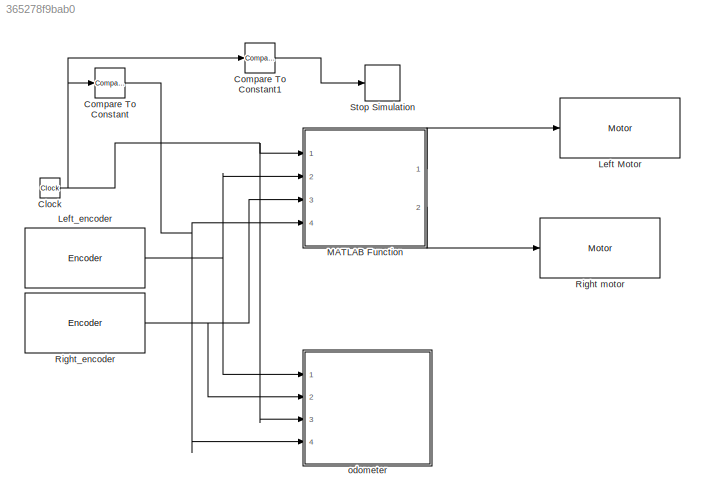
MODEL slx_365278f9bab0
KIND model
CONFIG AbsTol = auto
CONFIG EnableMultiTasking = on
CONFIG FixedStep = auto
CONFIG MaxStep = auto
CONFIG MinStep = auto
CONFIG RelTol = 1e-3
CONFIG SampleTimeConstraint = Unconstrained
CONFIG Solver = FixedStepAuto
CONFIG SolverName = FixedStepAuto
CONFIG StartTime = 0.0
CONFIG StopTime = 10.0
BLOCK [Clock] Clock
  Decimation = 1
BLOCK [Reference] Compare To Constant  REF=simulink/Logic and Bit
Operations/Compare
To Constant
  Ports = [1, 1]
  SourceBlock = simulink/Logic and Bit\nOperations/Compare\nTo Constant
  SourceType = Compare To Constant
BLOCK [Reference] Compare To Constant1  REF=simulink/Logic and Bit
Operations/Compare
To Constant
  Ports = [1, 1]
  SourceBlock = simulink/Logic and Bit\nOperations/Compare\nTo Constant
  SourceType = Compare To Constant
BLOCK [Reference] Left Motor  REF=legoev3lib/Motor
  Ports = [1]
  SourceBlock = legoev3lib/Motor
  SourceType = LEGO MINDSTORMS EV3 Motor
BLOCK [Reference] Left_encoder   REF=legoev3lib/Encoder
  Ports = [0, 1]
  SourceBlock = legoev3lib/Encoder
  SourceType = LEGO MINDSTORMS EV3 Encoder
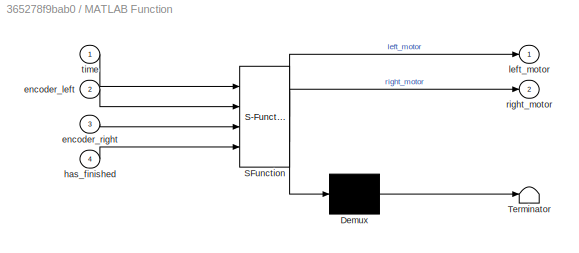
BLOCK [SubSystem] MATLAB Function
  ErrorFcn = Stateflow.Translate.translate
  PermitHierarchicalResolution = ExplicitOnly
  Ports = [4, 2]
  RequestExecContextInheritance = off
  SFBlockType = MATLAB Function
  TreatAsAtomicUnit = on
  Variant = off
BLOCK [Demux] MATLAB Function/ Demux 
  Outputs = 1
  Ports = [1, 1]
BLOCK [S-Function] MATLAB Function/ SFunction 
  EnableBusSupport = on
  FunctionName = sf_sfun
  PortCounts = [4 3]
  Ports = [4, 3]
  SFcnIsStateOwnerBlock = off
  SFunctionDeploymentMode = off
  Tag = Stateflow S-Function pr5 2
BLOCK [Terminator] MATLAB Function/ Terminator 
BLOCK [Inport] MATLAB Function/encoder_left
  IconDisplay = Port number
  Port = 2
BLOCK [Inport] MATLAB Function/encoder_right
  IconDisplay = Port number
  Port = 3
BLOCK [Inport] MATLAB Function/has_finished
  IconDisplay = Port number
  Port = 4
BLOCK [Outport] MATLAB Function/left_motor
  IconDisplay = Port number
BLOCK [Outport] MATLAB Function/right_motor
  IconDisplay = Port number
  Port = 2
BLOCK [Inport] MATLAB Function/time
  IconDisplay = Port number
BLOCK [Reference] Right motor   REF=legoev3lib/Motor
  Ports = [1]
  SourceBlock = legoev3lib/Motor
  SourceType = LEGO MINDSTORMS EV3 Motor
BLOCK [Reference] Right_encoder   REF=legoev3lib/Encoder
  Ports = [0, 1]
  SourceBlock = legoev3lib/Encoder
  SourceType = LEGO MINDSTORMS EV3 Encoder
BLOCK [Stop] Stop Simulation
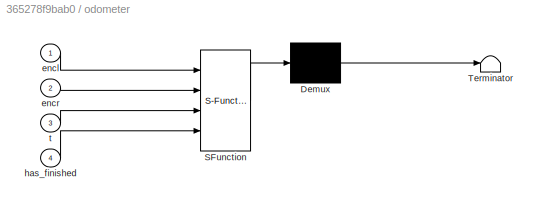
BLOCK [SubSystem] odometer
  ErrorFcn = Stateflow.Translate.translate
  PermitHierarchicalResolution = ExplicitOnly
  Ports = [4]
  RequestExecContextInheritance = off
  SFBlockType = MATLAB Function
  TreatAsAtomicUnit = on
  Variant = off
BLOCK [Demux] odometer/ Demux 
  Outputs = 1
  Ports = [1, 1]
BLOCK [S-Function] odometer/ SFunction 
  EnableBusSupport = on
  FunctionName = sf_sfun
  PortCounts = [4 1]
  Ports = [4, 1]
  SFcnIsStateOwnerBlock = off
  SFunctionDeploymentMode = off
  Tag = Stateflow S-Function pr5 1
BLOCK [Terminator] odometer/ Terminator 
BLOCK [Inport] odometer/encl
  IconDisplay = Port number
BLOCK [Inport] odometer/encr
  IconDisplay = Port number
  Port = 2
BLOCK [Inport] odometer/has_finished
  IconDisplay = Port number
  Port = 4
BLOCK [Inport] odometer/t
  IconDisplay = Port number
  Port = 3
NET Clock:1 -> Compare To Constant1:1, Compare To Constant:1, MATLAB Function:1, odometer:3
LINE Compare To Constant1:1 -> Stop Simulation:1
NET Compare To Constant:1 -> MATLAB Function:4, odometer:4
NET Left_encoder :1 -> MATLAB Function:2, odometer:1
LINE MATLAB Function:1 -> Left Motor:1
LINE MATLAB Function:2 -> Right motor :1
NET Right_encoder :1 -> MATLAB Function:3, odometer:2
note: NET lines group one-source signal fan-out (src -> all destinations, sorted); 1:1 wires keep LINE
CHART odometer states=1 transitions=1
  STATE_LABEL 'eML_blk_kernel()'
  STATE_LABEL "SCRIPT:\nfunction odometer( encl, encr, t, has_finished )\n\n    time  = double(t);\n    enc_l = double(encl);\n    enc_r = double(encr);\n\n    % define constants\n    persistent D R;\n    if( isempty(D) )\n        D = 0.117;\n        R = 0.027;\n    end\n\n    % define previous state \n    persistent x0 y0 w0 t0 prev_enc_l prev_enc_r file;\n    if( isempty(x0) )\n        file = fopen('<userpath>/lms2012/prjs/mw/...<+730ch>"
CHART MATLAB Function states=1 transitions=1
  STATE_LABEL 'eML_blk_kernel()'
  STATE_LABEL "SCRIPT:\nfunction [left_motor, right_motor] = fcn(time, encoder_left, encoder_right, has_finished)\n    persistent counter;\n    persistent isTurning;\n    persistent results;\n    persistent iteration;\n    persistent file;\n    if isempty(counter) \n       counter = 0; \n       isTurning = false;\n       results = zeros(6,30000);\n       iteration = 1;\n       file = fopen('<userpath>/lms2012/prjs/mw/mylog....<+494ch>"
